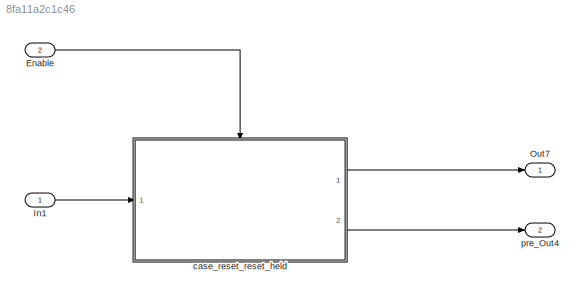
MODEL slx_8fa11a2c1c46
KIND model
CONFIG AbsTol = auto
CONFIG EnableMultiTasking = off
CONFIG FixedStep = 0.200000
CONFIG MaxStep = auto
CONFIG MinStep = auto
CONFIG RelTol = 1e-3
CONFIG SampleTimeConstraint = Unconstrained
CONFIG Solver = FixedStepDiscrete
CONFIG SolverName = FixedStepDiscrete
CONFIG StartTime = 0.0
CONFIG StopTime = 10.0
BLOCK [Inport] Enable
  IconDisplay = Port number
  Port = 2
BLOCK [Inport] In1
  IconDisplay = Port number
BLOCK [Outport] Out7
  IconDisplay = Port number
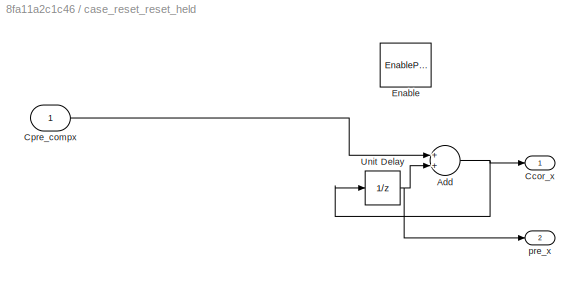
BLOCK [SubSystem] case_reset_reset_held
  Ports = [1, 2, 1]
  RequestExecContextInheritance = off
  TreatAsAtomicUnit = on
  Variant = off
BLOCK [Sum] case_reset_reset_held/Add
  InputSameDT = off
  OutDataTypeStr = Inherit: Inherit via internal rule
  Ports = [2, 1]
  SaturateOnIntegerOverflow = off
BLOCK [Outport] case_reset_reset_held/Ccor_x
  IconDisplay = Port number
  InitialOutput = 0
  OutputWhenDisabled = reset
BLOCK [Inport] case_reset_reset_held/Cpre_compx
  IconDisplay = Port number
  OutDataTypeStr = double
  PortDimensions = [1]
BLOCK [EnablePort] case_reset_reset_held/Enable
  Ports = []
  StatesWhenEnabling = reset
BLOCK [UnitDelay] case_reset_reset_held/Unit Delay
  InputProcessing = Elements as channels (sample based)
  SampleTime = -1.0000000000000000
BLOCK [Outport] case_reset_reset_held/pre_x
  IconDisplay = Port number
  InitialOutput = 0
  Port = 2
BLOCK [Outport] pre_Out4
  IconDisplay = Port number
  Port = 2
LINE Enable:1 -> case_reset_reset_held:enable
LINE In1:1 -> case_reset_reset_held:1
NET case_reset_reset_held/Add:1 -> case_reset_reset_held/Ccor_x:1, case_reset_reset_held/Unit Delay:1
LINE case_reset_reset_held/Cpre_compx:1 -> case_reset_reset_held/Add:1
NET case_reset_reset_held/Unit Delay:1 -> case_reset_reset_held/Add:2, case_reset_reset_held/pre_x:1
LINE case_reset_reset_held:1 -> Out7:1
LINE case_reset_reset_held:2 -> pre_Out4:1
note: NET lines group one-source signal fan-out (src -> all destinations, sorted); 1:1 wires keep LINE
